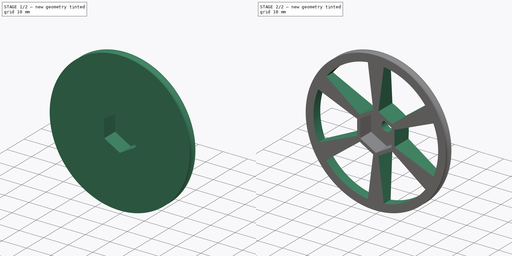
[diagram: build sequence overview — one tinted view per stage of 2, left to right]
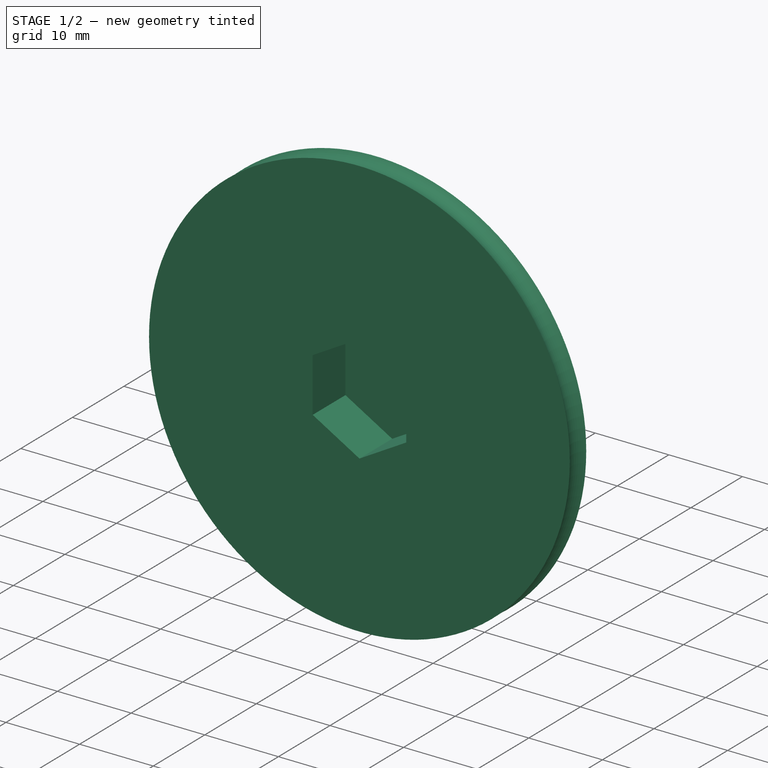
[diagram: stage 1 of 2 — iso view after this stage's code; geometry added in this stage tinted green]
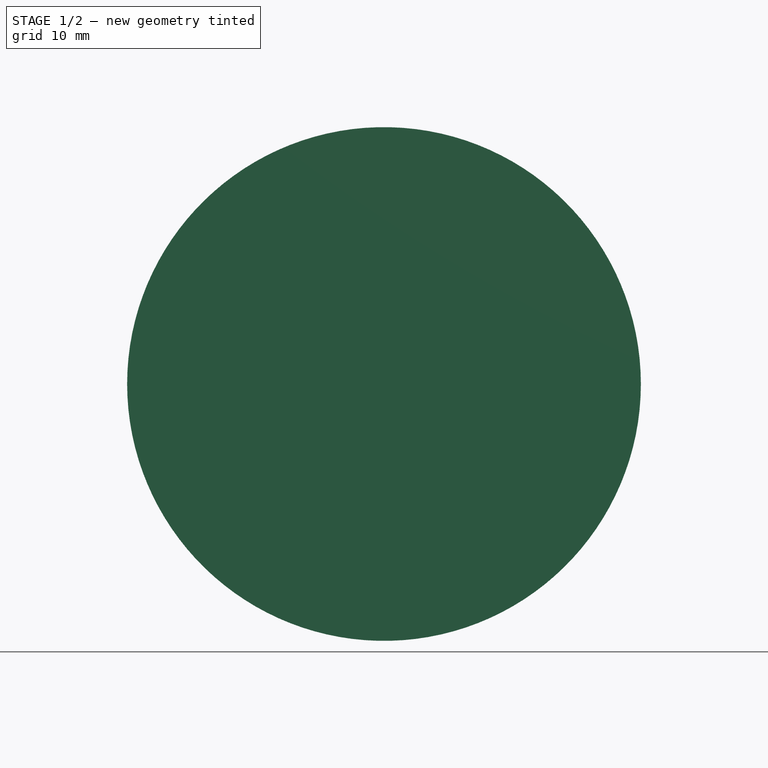
[diagram: stage 1 of 2 — front view after this stage's code; geometry added in this stage tinted green]
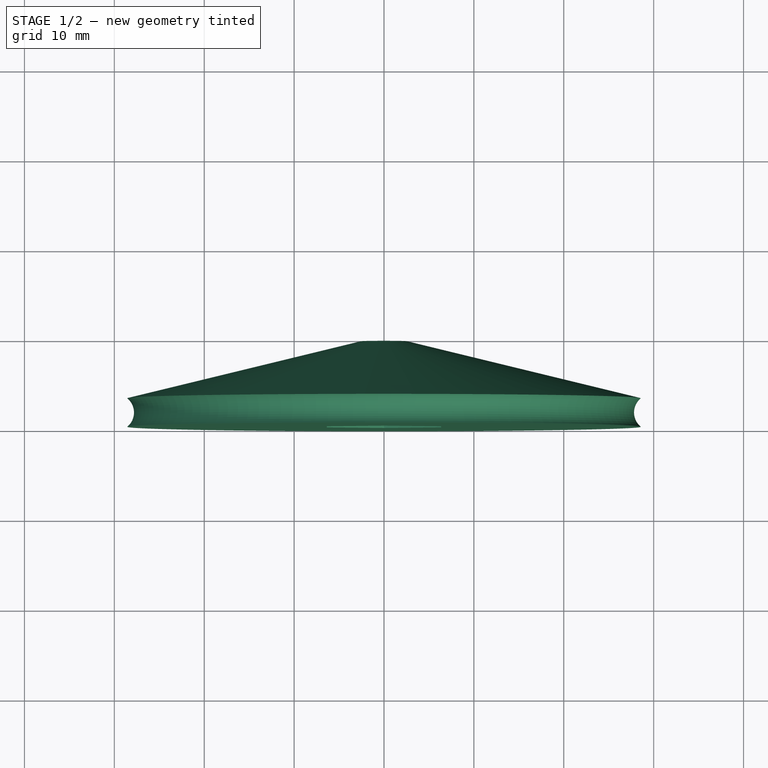
[diagram: stage 1 of 2 — top view after this stage's code; geometry added in this stage tinted green]
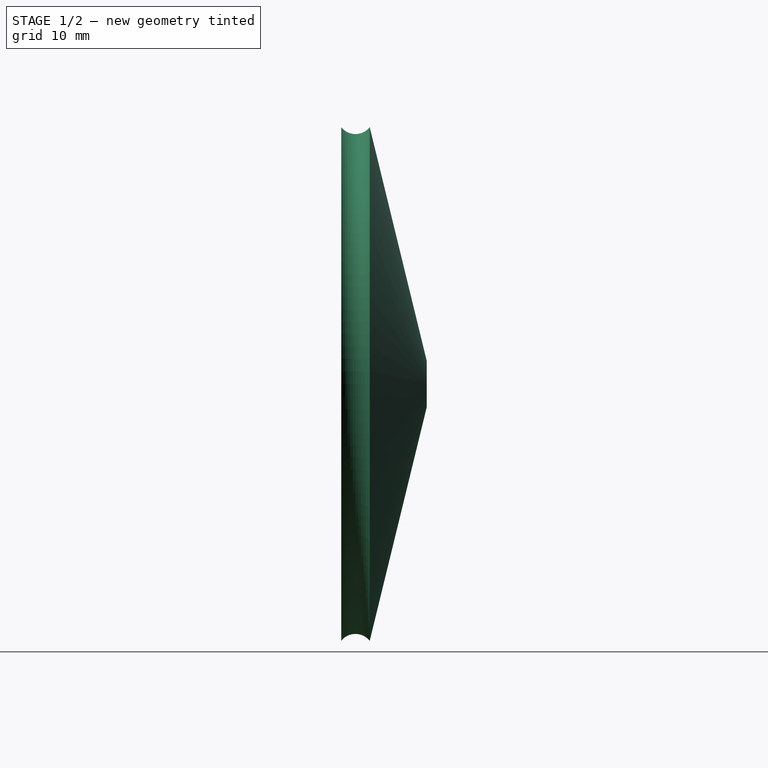
[diagram: stage 1 of 2 — right view after this stage's code; geometry added in this stage tinted green]
FCSTD DOCUMENT  (FreeCAD 0.15R4671 (Git))
Label: wheel
License: All rights reserved
LicenseURL: http://en.wikipedia.org/wiki/All_rights_reserved
objects: Sketcher::SketchObject×4, PartDesign::Pocket×3, PartDesign::Revolution×1
note: 12 computed .brp shape members not serialized (recipe doc carries the construction recipe); baked Part::Feature solids carry a one-line shape summary decoded from their .brp

FEATURE [Sketcher::SketchObject] Sketch
  sketch-geometry (6):
    g0: LineSegment StartX=0 StartY=0 StartZ=0 EndX=-28.575 EndY=0 EndZ=0
    g1: LineSegment StartX=0 StartY=3.175 StartZ=0 EndX=0 EndY=0 EndZ=0
    g2: ArcOfCircle CenterX=-29.8434 CenterY=1.5875 CenterZ=0 NormalX=0 NormalY=0 NormalZ=1 Radius=2.032 StartAngle=5.38652 EndAngle=7.17985
    g3: LineSegment StartX=0 StartY=3.175 StartZ=0 EndX=0 EndY=9.525 EndZ=0
    g4: LineSegment StartX=0 StartY=9.525 StartZ=0 EndX=-2.54 EndY=9.525 EndZ=0
    g5: LineSegment StartX=-28.575 StartY=3.175 StartZ=0 EndX=-2.54 EndY=9.525 EndZ=0
  constraints (20):
    c: Coincident(g1,g0)
    c: Horizontal(g0)
    c: Vertical(g1)
    c: Coincident(g0,g-1)
    c: Distance(g1) = 3.175
    c: Coincident(g2,g0)
    c: Radius(g2) = 2.032
    c: PointOnObject(g3,g-2)
    c: Vertical(g3)
    c: Distance(g3) = 6.35
    c: Distance(g2,g1) = 28.575
    c: Coincident(g3,g1)
    c: Distance(g0) = 28.575
    c: Distance(g2,g0) = 3.175
    c: PointOnObject(g4,g3)
    c: Horizontal(g4)
    c: Coincident(g5,g2)
    c: Coincident(g5,g4)
    c: Coincident(g3,g4)
    c: Distance(g4) = 2.54
FEATURE [PartDesign::Revolution] Revolution
  Angle = 360
  Axis = (0,1,0)
  Base = (0,0,0)
  ReferenceAxis = -> Sketch [V_Axis]
  Sketch = -> Sketch
FEATURE [Sketcher::SketchObject] Sketch001
  Placement = pos=(0,0,0) rot=(1,0,0;1.5708rad)
  Support = -> Revolution [Face1]
  sketch-geometry (7):
    g0: LineSegment StartX=0 StartY=7.33235 StartZ=0 EndX=-6.35 EndY=3.66617 EndZ=0
    g1: LineSegment StartX=-6.35 StartY=3.66617 StartZ=0 EndX=-6.35 EndY=-3.66617 EndZ=0
    g2: LineSegment StartX=-6.35 StartY=-3.66617 StartZ=0 EndX=0 EndY=-7.33235 EndZ=0
    g3: LineSegment StartX=0 StartY=-7.33235 StartZ=0 EndX=6.35 EndY=-3.66617 EndZ=0
    g4: LineSegment StartX=6.35 StartY=-3.66617 StartZ=0 EndX=6.35 EndY=3.66617 EndZ=0
    g5: LineSegment StartX=6.35 StartY=3.66617 StartZ=0 EndX=0 EndY=7.33235 EndZ=0
    g6: Circle [constr] CenterX=0 CenterY=0 CenterZ=0 NormalX=0 NormalY=0 NormalZ=1 Radius=7.33235
  constraints (17):
    c: Coincident(g0,g1)
    c: Coincident(g1,g2)
    c: Coincident(g2,g3)
    c: Coincident(g3,g4)
    c: Coincident(g4,g5)
    c: Coincident(g5,g0)
    c: Equal(g0, g1-g5) x5
    c: PointOnObject(g0,g6)
    c: PointOnObject(g1,g6)
    c: PointOnObject(g2,g6)
    c: PointOnObject(g3,g6)
    c: PointOnObject(g4,g6)
    c: PointOnObject(g5,g6)
    c: Coincident(g3,g-1)
    c: Vertical(g4)
    c: Distance(g4,g2) = 12.7
    c: Coincident(g6,g-1)
FEATURE [PartDesign::Pocket] Pocket
  Length = 6.35
  Sketch = -> Sketch001
  Type = 0
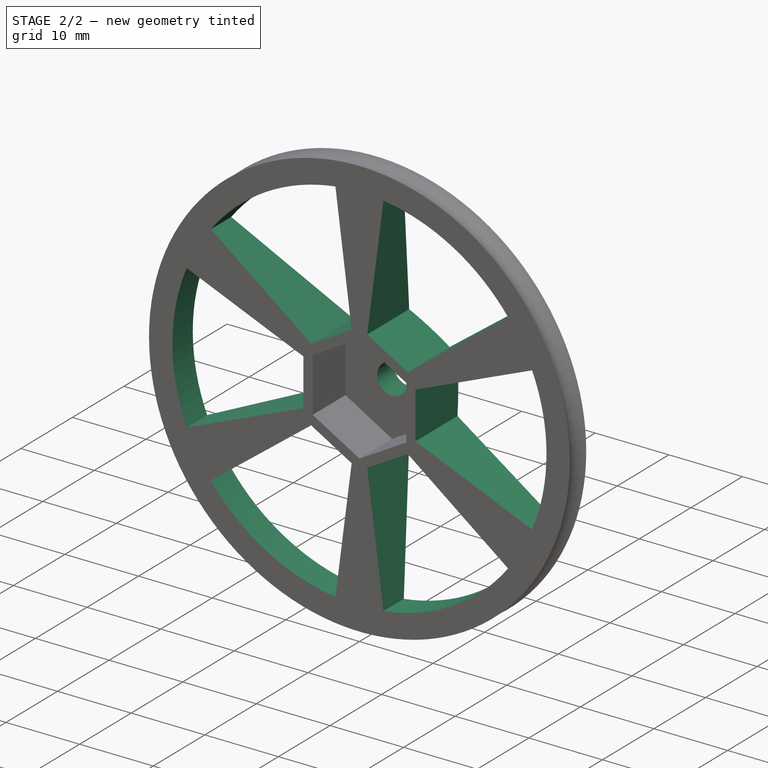
[diagram: stage 2 of 2 — iso view after this stage's code; geometry added in this stage tinted green]
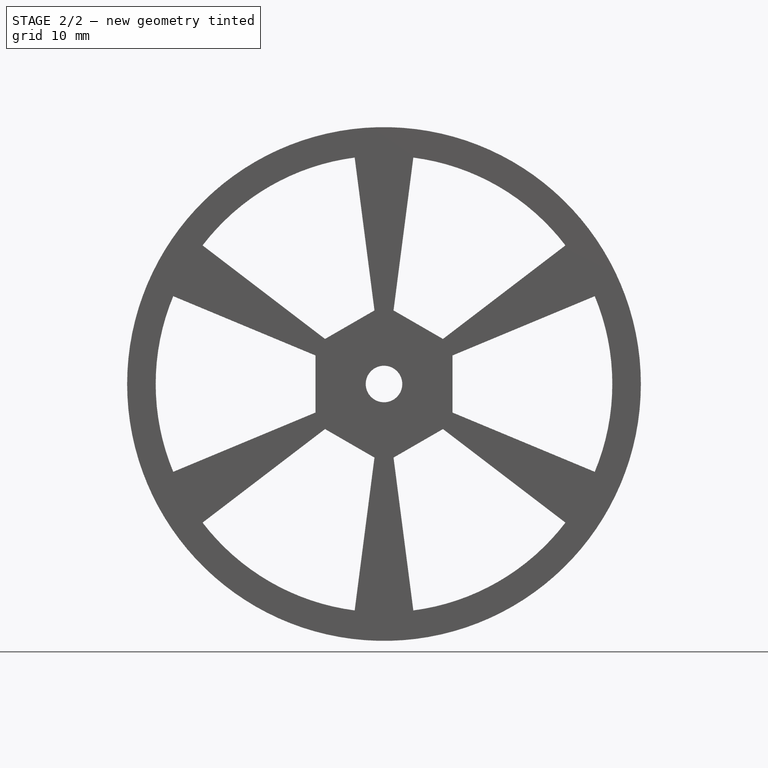
[diagram: stage 2 of 2 — front view after this stage's code; geometry added in this stage tinted green]
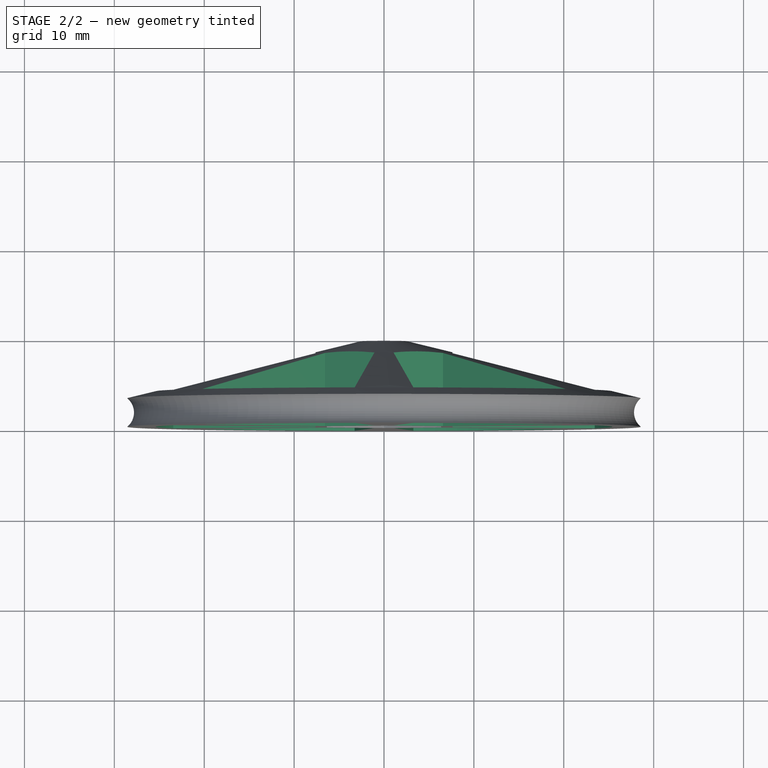
[diagram: stage 2 of 2 — top view after this stage's code; geometry added in this stage tinted green]
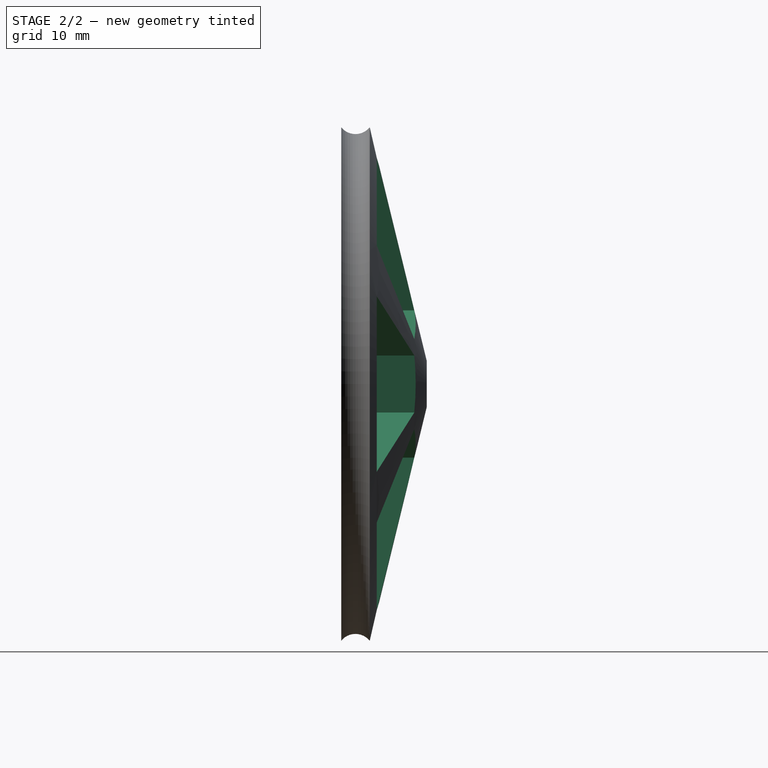
[diagram: stage 2 of 2 — right view after this stage's code; geometry added in this stage tinted green]
FEATURE [Sketcher::SketchObject] Sketch002
  Placement = pos=(0,9.525,0) rot=(0,0.707107,0.707107;3.14159rad)
  Support = -> Pocket [Face11]
  sketch-geometry (1):
    g0: Circle CenterX=0 CenterY=0 CenterZ=0 NormalX=0 NormalY=0 NormalZ=1 Radius=2.032
  constraints (2):
    c: Coincident(g0,g-1)
    c: Radius(g0) = 2.032
FEATURE [PartDesign::Pocket] Pocket001
  Length = 4.99999
  Sketch = -> Sketch002
  Type = 0
FEATURE [Sketcher::SketchObject] Sketch003
  Placement = pos=(0,0,0) rot=(1,0,0;1.5708rad)
  Support = -> Pocket001 [Face1]
  sketch-geometry (25):
    g0: LineSegment StartX=1.06037 StartY=8.18661 StartZ=0 EndX=6.55963 EndY=5.01161 EndZ=0
    g1: LineSegment StartX=6.55963 StartY=5.01161 StartZ=0 EndX=20.1835 EndY=15.4203 EndZ=0
    g2: LineSegment StartX=3.26268 StartY=25.1896 StartZ=0 EndX=1.06037 EndY=8.18661 EndZ=0
    g3: LineSegment StartX=7.62 StartY=3.175 StartZ=0 EndX=7.62 EndY=-3.175 EndZ=0
    g4: LineSegment StartX=7.62 StartY=-3.175 StartZ=0 EndX=23.4462 EndY=-9.76923 EndZ=0
    g5: LineSegment StartX=23.4462 StartY=9.76923 StartZ=0 EndX=7.62 EndY=3.175 EndZ=0
    g6: LineSegment StartX=6.55963 StartY=-5.01161 StartZ=0 EndX=1.06037 EndY=-8.18661 EndZ=0
    g7: LineSegment StartX=1.06037 StartY=-8.18661 StartZ=0 EndX=3.26268 EndY=-25.1896 EndZ=0
    g8: LineSegment StartX=20.1835 StartY=-15.4203 StartZ=0 EndX=6.55963 EndY=-5.01161 EndZ=0
    g9: LineSegment StartX=-6.55963 StartY=-5.01161 StartZ=0 EndX=-1.06037 EndY=-8.18661 EndZ=0
    g10: LineSegment StartX=-1.06037 StartY=-8.18661 StartZ=0 EndX=-3.26263 EndY=-25.1896 EndZ=0
    g11: LineSegment StartX=-20.1834 StartY=-15.4204 StartZ=0 EndX=-6.55963 EndY=-5.01161 EndZ=0
    g12: LineSegment StartX=-7.62 StartY=3.175 StartZ=0 EndX=-7.62 EndY=-3.175 EndZ=0
    g13: LineSegment StartX=-7.62 StartY=-3.175 StartZ=0 EndX=-23.4462 EndY=-9.76923 EndZ=0
    g14: LineSegment StartX=-23.4462 StartY=9.76923 StartZ=0 EndX=-7.62 EndY=3.175 EndZ=0
    g15: LineSegment StartX=-6.55963 StartY=5.01161 StartZ=0 EndX=-1.06037 EndY=8.18661 EndZ=0
    g16: LineSegment StartX=-1.06037 StartY=8.18661 StartZ=0 EndX=-3.26268 EndY=25.1896 EndZ=0
    g17: LineSegment StartX=-20.1835 StartY=15.4203 StartZ=0 EndX=-6.55963 EndY=5.01161 EndZ=0
    g18: Circle [constr] CenterX=0 CenterY=0 CenterZ=0 NormalX=0 NormalY=0 NormalZ=1 Radius=8.255
    g19: ArcOfCircle CenterX=0 CenterY=0 CenterZ=0 NormalX=0 NormalY=0 NormalZ=1 Radius=25.4 StartAngle=0.652406 EndAngle=1.44199
    g20: ArcOfCircle CenterX=0 CenterY=0 CenterZ=0 NormalX=0 NormalY=0 NormalZ=1 Radius=25.4 StartAngle=5.88839 EndAngle=6.67798
    g21: ArcOfCircle CenterX=0 CenterY=0 CenterZ=0 NormalX=0 NormalY=0 NormalZ=1 Radius=25.4 StartAngle=4.8412 EndAngle=5.63078
    g22: ArcOfCircle CenterX=0 CenterY=0 CenterZ=0 NormalX=0 NormalY=0 NormalZ=1 Radius=25.4 StartAngle=1.6996 EndAngle=2.48919
    g23: ArcOfCircle CenterX=0 CenterY=0 CenterZ=0 NormalX=0 NormalY=0 NormalZ=1 Radius=25.4 StartAngle=2.7468 EndAngle=3.53638
    g24: ArcOfCircle CenterX=0 CenterY=0 CenterZ=0 NormalX=0 NormalY=0 NormalZ=1 Radius=25.4 StartAngle=3.794 EndAngle=4.58358
  constraints (74):
    c: Coincident(g0,g1)
    c: Coincident(g2,g0)
    c: Vertical(g3)
    c: Coincident(g3,g4)
    c: Coincident(g5,g3)
    c: Coincident(g6,g7)
    c: Coincident(g8,g6)
    c: Coincident(g9,g10)
    c: Coincident(g11,g9)
    c: Vertical(g12)
    c: Coincident(g12,g13)
    c: Coincident(g14,g12)
    c: Coincident(g15,g16)
    c: Coincident(g17,g15)
    c: Coincident(g18,g-1)
    c: Radius(g18) = 8.255
    c: PointOnObject(g15,g18)
    c: PointOnObject(g15,g18)
    c: PointOnObject(g0,g18)
    c: PointOnObject(g0,g18)
    c: PointOnObject(g3,g18)
    c: PointOnObject(g3,g18)
    c: PointOnObject(g6,g18)
    c: PointOnObject(g6,g18)
    c: PointOnObject(g9,g18)
    c: PointOnObject(g9,g18)
    c: PointOnObject(g12,g18)
    c: PointOnObject(g12,g18)
    c: Equal(g15,g0)
    c: Equal(g0,g3)
    c: Equal(g3,g6)
    c: Equal(g6,g9)
    c: Equal(g9,g12)
    c: Equal(g16,g2)
    c: Equal(g2,g1)
    c: Equal(g1,g5)
    c: Equal(g5,g4)
    c: Equal(g4,g8)
    c: Equal(g8,g7)
    c: Equal(g7,g10)
    c: Equal(g10,g11)
    c: Equal(g11,g13)
    c: Equal(g13,g14)
    c: Equal(g14,g17)
    c: Distance(g12) = 6.35
    c: Distance(g13) = 17.145
    c: Angle(g15) = 0.523599
    c: Angle(g0) = -0.523599
    c: Angle(g6) = -2.61799
    c: Angle(g9) = -0.523599
    c: Coincident(g19,g-1)
    c: Coincident(g19,g2)
    c: Coincident(g19,g1)
    c: Coincident(g20,g-1)
    c: Coincident(g20,g5)
    c: Coincident(g20,g4)
    c: Coincident(g21,g-1)
    c: Coincident(g21,g8)
    c: Coincident(g21,g7)
    c: Radius(g19) = 25.4
    c: Radius(g20) = 25.4
    c: Radius(g21) = 25.4
    c: Coincident(g22,g-1)
    c: Coincident(g22,g16)
    c: Coincident(g22,g17)
    c: Radius(g22) = 25.4
    c: Coincident(g23,g-1)
    c: Coincident(g23,g14)
    c: Coincident(g23,g13)
    c: Radius(g23) = 25.4
    c: Coincident(g24,g-1)
    c: Coincident(g24,g11)
    c: Coincident(g24,g10)
    c: Radius(g24) = 25.4
FEATURE [PartDesign::Pocket] Pocket002
  Length = 25.4
  Sketch = -> Sketch003
  Type = 0
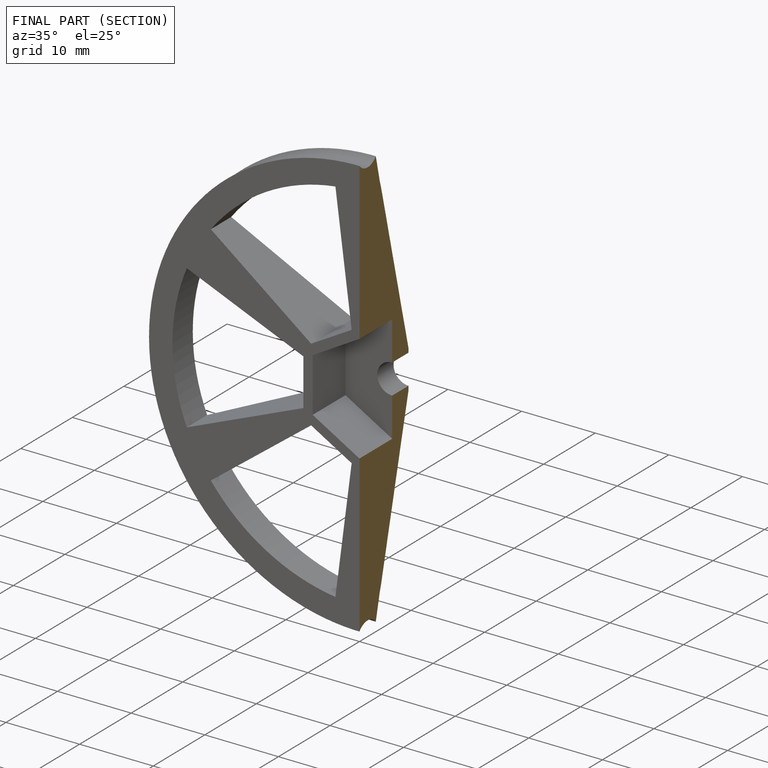
[diagram: finished part — half-section view (interior)]
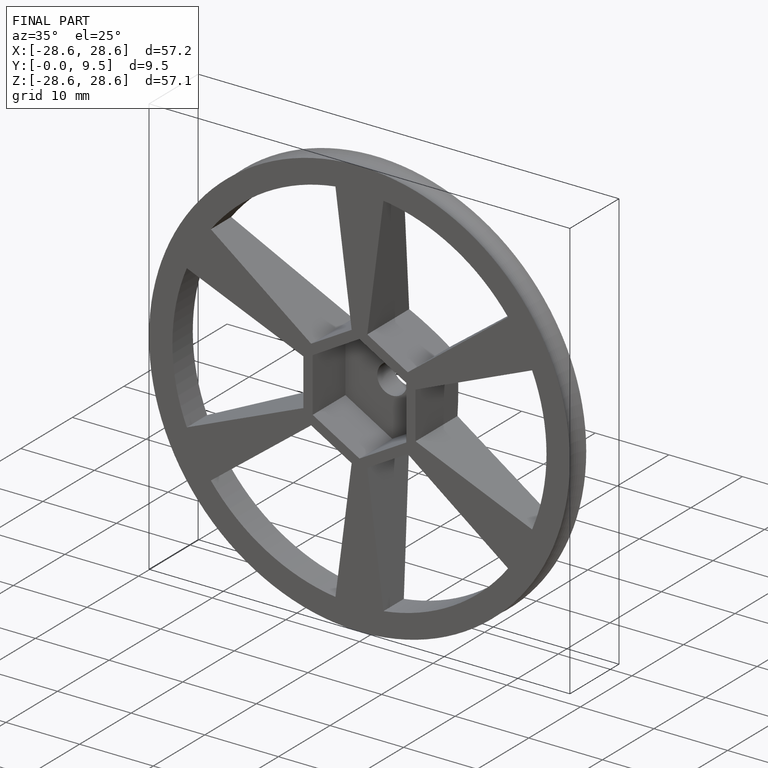
[diagram: finished part — iso view with bounding-box wireframe]
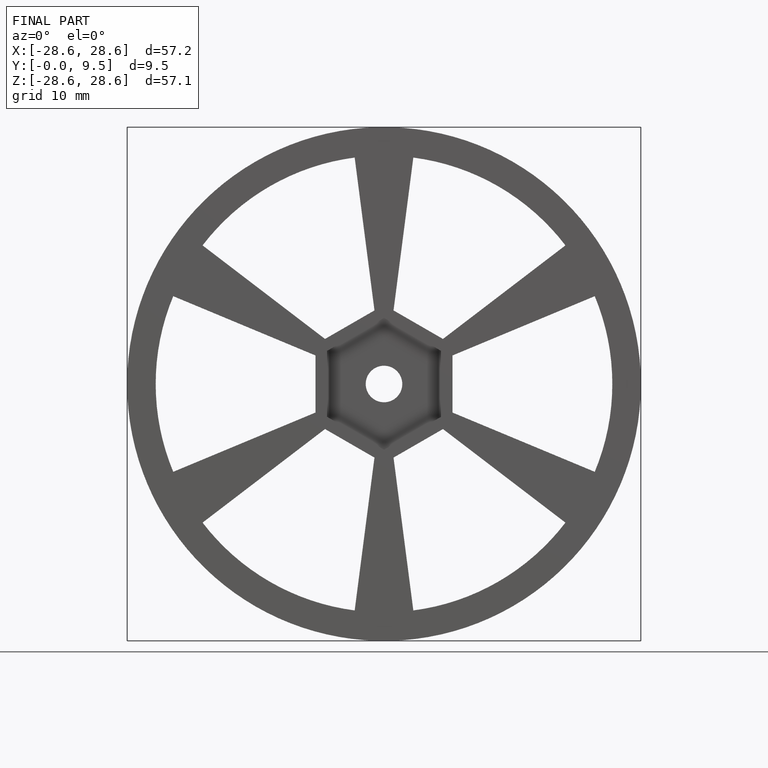
[diagram: finished part — front view with bounding-box wireframe]
